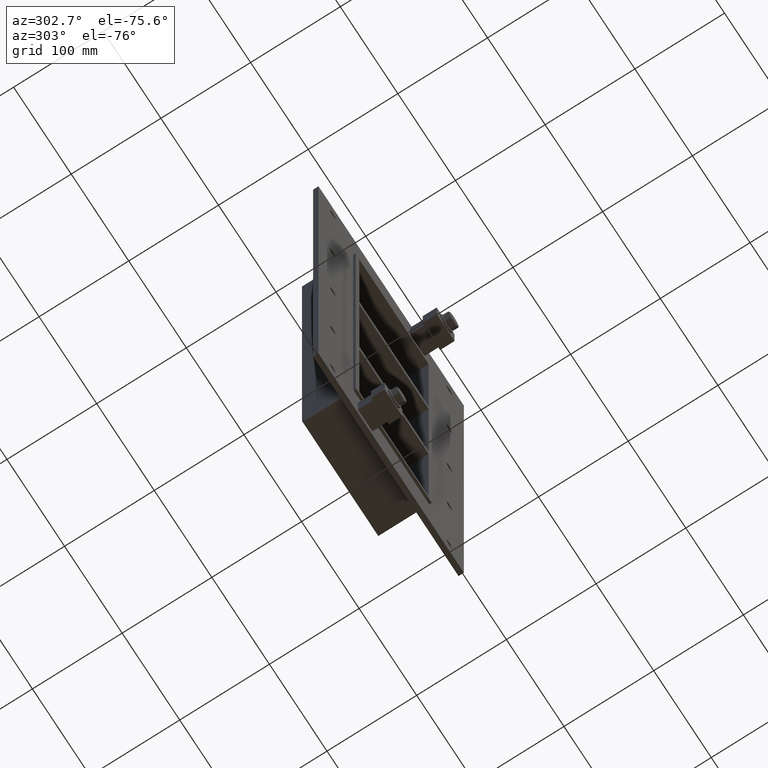
[diagram: clean part render]
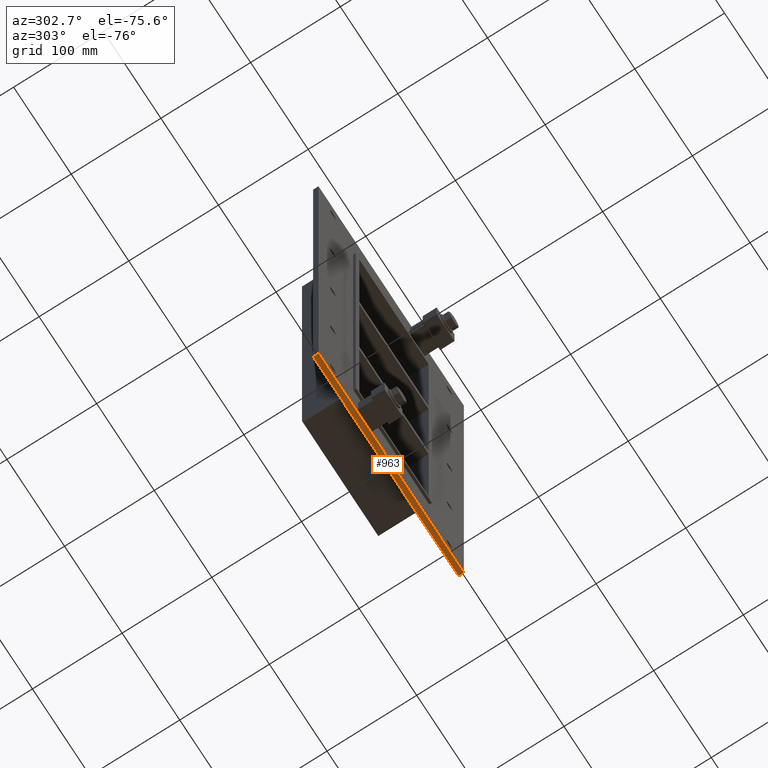
[diagram: same view with one face highlighted and labeled with its STEP entity id]
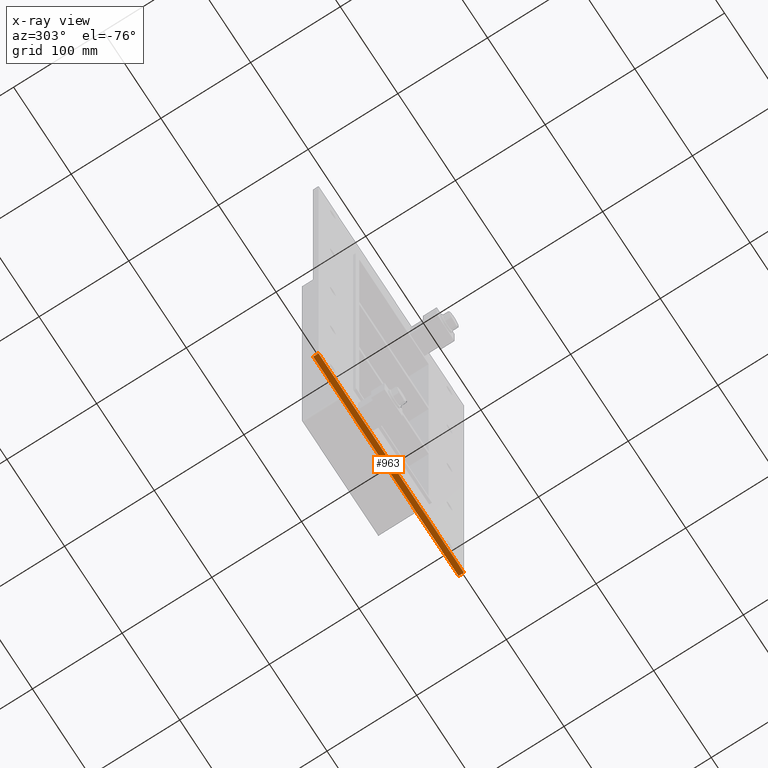
[diagram: x-ray of the same camera — body ghosted, the highlighted face saturated]
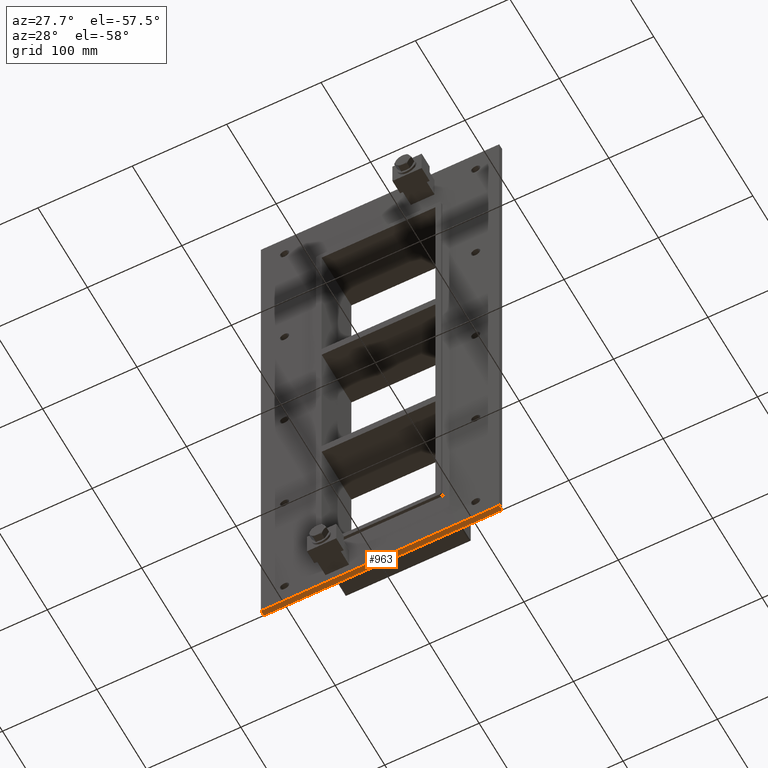
[diagram: same view with one face highlighted and labeled with its STEP entity id]
A machine part, auxiliary view. The second image highlights one B-rep face of the part: STEP entity #963.
The next image is the same camera in x-ray: the body ghosted, the highlighted face saturated — about 0% of this face is hidden behind the body in this view.
A second angle (auxiliary view) of the same face is appended — the face is thin or edge-on in the first view.
In plain terms, the highlighted planar face has unit normal (0, 0, -1).
Its self-contained STEP definition (entity closure, byte-faithful):
#660=CARTESIAN_POINT('',(126.25000000000001,6.000000000000001,-315.25000000000006));
#661=VERTEX_POINT('',#660);
#668=CARTESIAN_POINT('',(-126.24999999999999,6.000000000000001,-315.25000000000006));
#669=VERTEX_POINT('',#668);
#670=CARTESIAN_POINT('',(126.25,6.000000000000001,-315.25000000000006));
#671=DIRECTION('',(-1.0,0.0,0.0));
#672=VECTOR('',#671,252.5);
#673=LINE('',#670,#672);
#674=EDGE_CURVE('',#661,#669,#673,.T.);
#800=CARTESIAN_POINT('',(-126.24999999999999,0.0,-315.25000000000006));
#801=VERTEX_POINT('',#800);
#808=CARTESIAN_POINT('',(126.25,0.0,-315.25000000000006));
#809=VERTEX_POINT('',#808);
#810=CARTESIAN_POINT('',(126.25,0.0,-315.25000000000006));
#811=DIRECTION('',(-1.0,0.0,0.0));
#812=VECTOR('',#811,252.5);
#813=LINE('',#810,#812);
#814=EDGE_CURVE('',#809,#801,#813,.T.);
#938=CARTESIAN_POINT('',(-126.24999999999999,0.0,-315.25000000000006));
#939=DIRECTION('',(0.0,1.0,0.0));
#940=VECTOR('',#939,6.000000000000001);
#941=LINE('',#938,#940);
#942=EDGE_CURVE('',#801,#669,#941,.T.);
#947=CARTESIAN_POINT('',(126.25,0.0,-315.25000000000006));
#948=DIRECTION('',(0.0,0.0,-1.0));
#949=DIRECTION('',(-1.0,0.0,0.0));
#950=AXIS2_PLACEMENT_3D('',#947,#948,#949);
#951=PLANE('',#950);
#952=ORIENTED_EDGE('',*,*,#814,.T.);
#953=ORIENTED_EDGE('',*,*,#942,.T.);
#954=ORIENTED_EDGE('',*,*,#674,.F.);
#955=CARTESIAN_POINT('',(126.25,0.0,-315.25000000000006));
#956=DIRECTION('',(0.0,1.0,0.0));
#957=VECTOR('',#956,6.000000000000001);
#958=LINE('',#955,#957);
#959=EDGE_CURVE('',#809,#661,#958,.T.);
#960=ORIENTED_EDGE('',*,*,#959,.F.);
#961=EDGE_LOOP('',(#952,#953,#954,#960));
#962=FACE_OUTER_BOUND('',#961,.T.);
#963=ADVANCED_FACE('',(#962),#951,.T.);